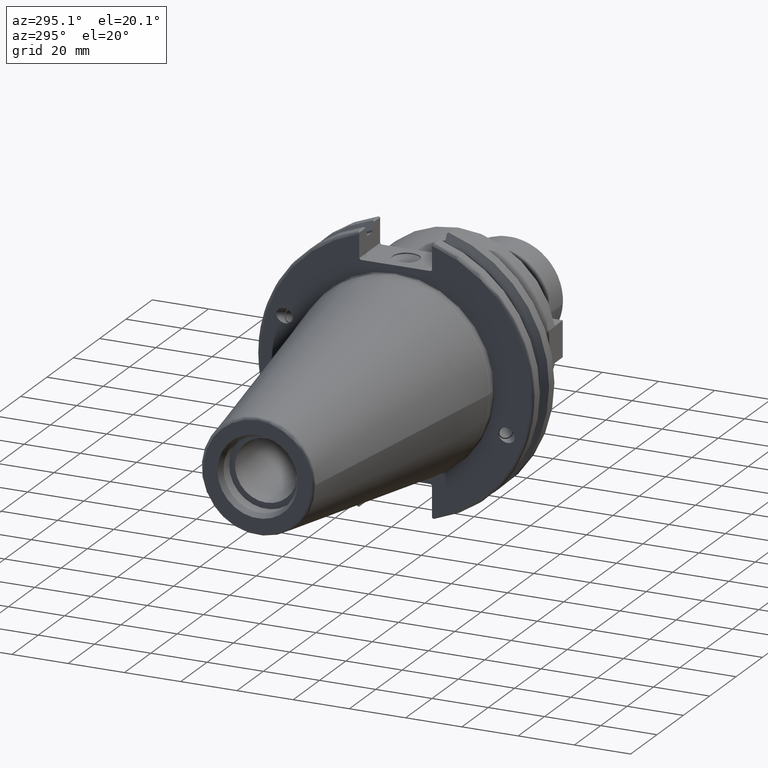
[diagram: clean part render]
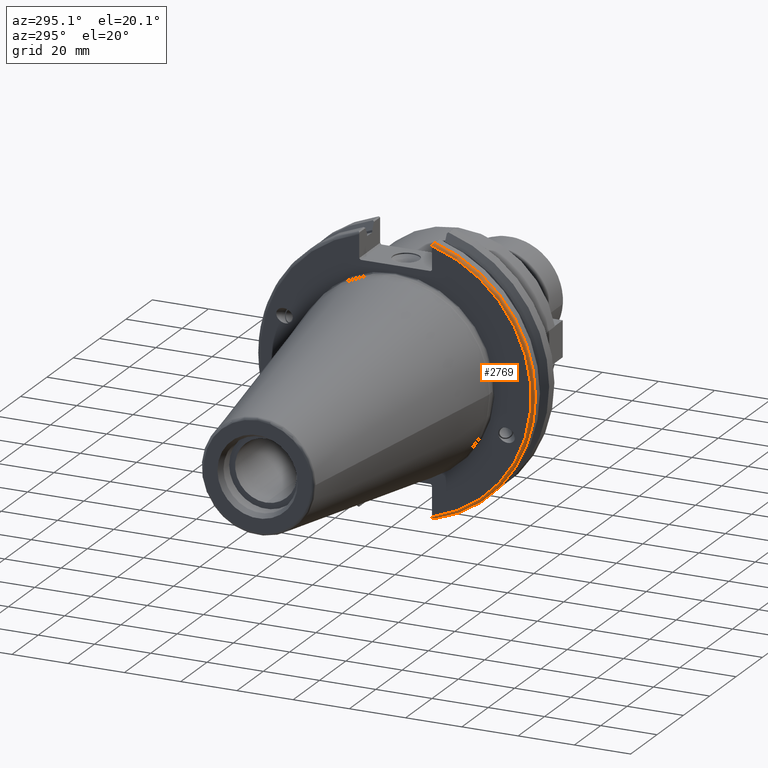
[diagram: same view with one face highlighted and labeled with its STEP entity id]
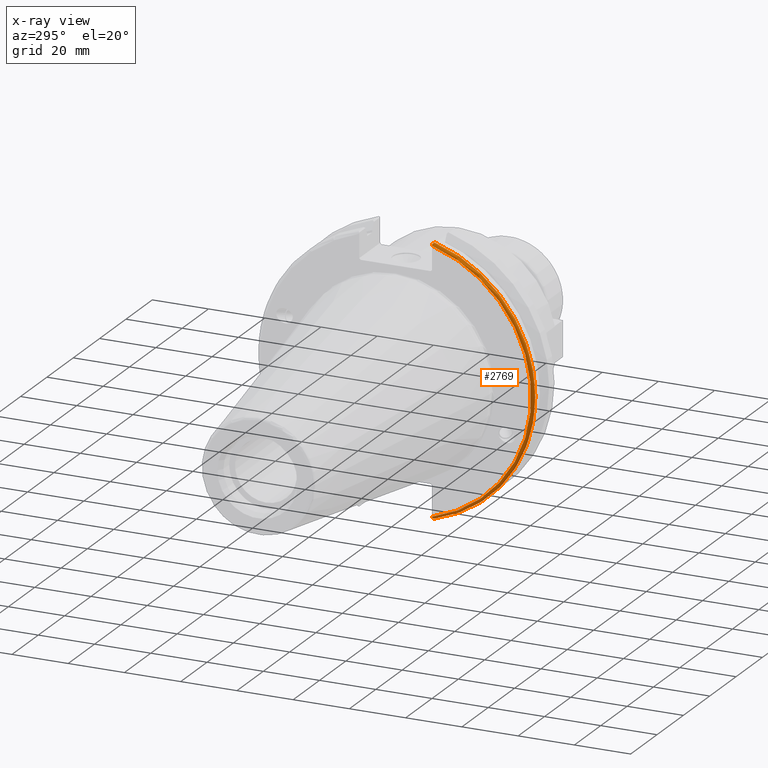
[diagram: x-ray of the same camera — body ghosted, the highlighted face saturated]
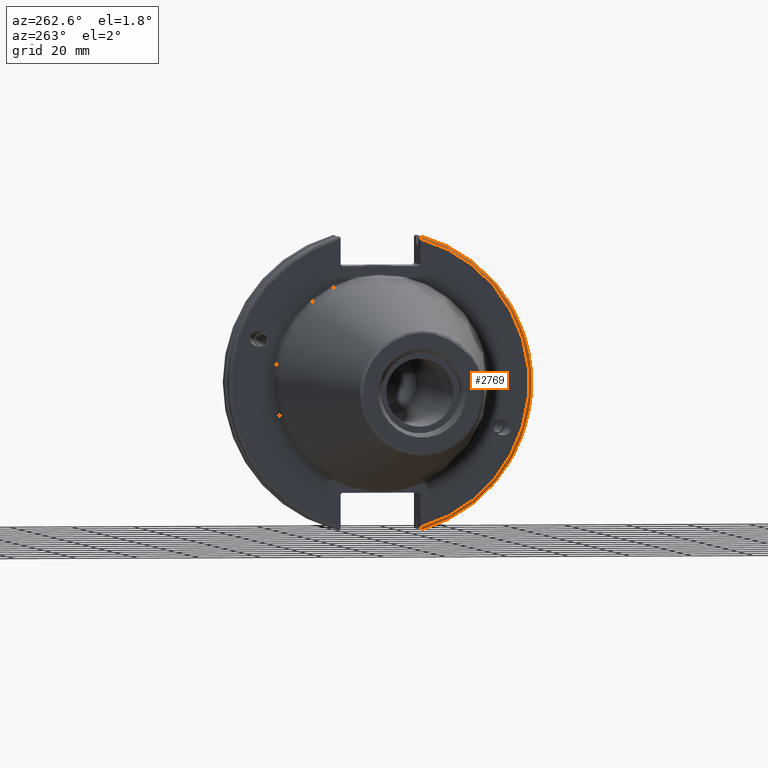
[diagram: same view with one face highlighted and labeled with its STEP entity id]
A machine part, auxiliary view. The second image highlights one B-rep face of the part: STEP entity #2769.
The next image is the same camera in x-ray: the body ghosted, the highlighted face saturated — about 0% of this face is hidden behind the body in this view.
A second angle (auxiliary view) of the same face is appended — the face is thin or edge-on in the first view.
In plain terms, the highlighted toroidal blend (fillet) surface has major radius 48.2125 mm and minor (blend) radius 1 mm.
Its self-contained STEP definition (entity closure, byte-faithful):
#446=TOROIDAL_SURFACE('',#3123,48.2125,1.);
#505=B_SPLINE_CURVE_WITH_KNOTS('',3,(#4865,#4866,#4867,#4868,#4869,#4870),
 .UNSPECIFIED.,.F.,.F.,(4,2,4),(0.0976892167532858,0.112000071948292,0.150881870548587),
 .UNSPECIFIED.);
#512=B_SPLINE_CURVE_WITH_KNOTS('',3,(#4975,#4976,#4977,#4978,#4979,#4980,
#4981,#4982),.UNSPECIFIED.,.F.,.F.,(4,2,2,4),(-0.104075769062722,-0.0730268503455485,
-0.034363987365627,0.),.UNSPECIFIED.);
#513=B_SPLINE_CURVE_WITH_KNOTS('',3,(#4985,#4986,#4987,#4988,#4989,#4990,
#4991,#4992),.UNSPECIFIED.,.F.,.F.,(4,2,2,4),(0.,0.0343639873656262,0.073026850345548,
0.104075769062723),.UNSPECIFIED.);
#514=B_SPLINE_CURVE_WITH_KNOTS('',3,(#4993,#4994,#4995,#4996,#4997,#4998),
 .UNSPECIFIED.,.F.,.F.,(4,2,4),(0.452859340315922,0.491741138916218,0.506051994111223),
 .UNSPECIFIED.);
#650=CIRCLE('',#3108,48.2125);
#657=CIRCLE('',#3124,49.2125);
#787=FACE_OUTER_BOUND('',#945,.T.);
#945=EDGE_LOOP('',(#2264,#2265,#2266,#2267,#2268,#2269));
#1469=VERTEX_POINT('',#4792);
#1470=VERTEX_POINT('',#4793);
#1489=VERTEX_POINT('',#4864);
#1514=VERTEX_POINT('',#4973);
#1515=VERTEX_POINT('',#4974);
#1516=VERTEX_POINT('',#4983);
#1736=EDGE_CURVE('',#1469,#1470,#650,.T.);
#1760=EDGE_CURVE('',#1489,#1469,#505,.T.);
#1794=EDGE_CURVE('',#1514,#1515,#512,.T.);
#1795=EDGE_CURVE('',#1515,#1516,#657,.T.);
#1796=EDGE_CURVE('',#1516,#1489,#513,.T.);
#1797=EDGE_CURVE('',#1470,#1514,#514,.T.);
#2264=ORIENTED_EDGE('',*,*,#1794,.T.);
#2265=ORIENTED_EDGE('',*,*,#1795,.T.);
#2266=ORIENTED_EDGE('',*,*,#1796,.T.);
#2267=ORIENTED_EDGE('',*,*,#1760,.T.);
#2268=ORIENTED_EDGE('',*,*,#1736,.T.);
#2269=ORIENTED_EDGE('',*,*,#1797,.T.);
#2769=ADVANCED_FACE('',(#787),#446,.T.);
#3108=AXIS2_PLACEMENT_3D('',#4794,#3586,#3587);
#3123=AXIS2_PLACEMENT_3D('',#4972,#3653,#3654);
#3124=AXIS2_PLACEMENT_3D('',#4984,#3655,#3656);
#3586=DIRECTION('center_axis',(1.,0.,0.));
#3587=DIRECTION('ref_axis',(0.,-1.,1.60812264967664E-16));
#3653=DIRECTION('center_axis',(1.,0.,0.));
#3654=DIRECTION('ref_axis',(0.,0.,-1.));
#3655=DIRECTION('center_axis',(-1.,0.,0.));
#3656=DIRECTION('ref_axis',(0.,-1.,1.60812264967664E-16));
#4792=CARTESIAN_POINT('',(3.175,-12.95,46.4407434937254));
#4793=CARTESIAN_POINT('',(3.175,-12.95,-46.4407434937254));
#4794=CARTESIAN_POINT('Origin',(3.175,0.,0.));
#4864=CARTESIAN_POINT('',(3.31949794294344,-12.95,46.9780755322918));
#4865=CARTESIAN_POINT('Ctrl Pts',(3.31949794294344,-12.95,46.9780755322918));
#4866=CARTESIAN_POINT('Ctrl Pts',(3.29341556483839,-12.95,46.9333752207329));
#4867=CARTESIAN_POINT('Ctrl Pts',(3.27115672912336,-12.95,46.887363294568));
#4868=CARTESIAN_POINT('Ctrl Pts',(3.20453530071253,-12.95,46.7230464903732));
#4869=CARTESIAN_POINT('Ctrl Pts',(3.175,-12.95,46.5703494890597));
#4870=CARTESIAN_POINT('Ctrl Pts',(3.175,-12.95,46.4407434937254));
#4972=CARTESIAN_POINT('Origin',(4.175,0.,0.));
#4973=CARTESIAN_POINT('',(3.31949794294343,-12.95,-46.9780755322917));
#4974=CARTESIAN_POINT('',(4.175,-13.4317035994433,-47.3440544806494));
#4975=CARTESIAN_POINT('Ctrl Pts',(3.31949794294343,-12.95,-46.9780755322917));
#4976=CARTESIAN_POINT('Ctrl Pts',(3.36785032278753,-13.0300321736484,-47.0388807469102));
#4977=CARTESIAN_POINT('Ctrl Pts',(3.43235971798504,-13.1083611826073,-47.0983919657547));
#4978=CARTESIAN_POINT('Ctrl Pts',(3.58507512107923,-13.2478194810696,-47.2043467509586));
#4979=CARTESIAN_POINT('Ctrl Pts',(3.70638116490964,-13.3242014686233,-47.2623787015413));
#4980=CARTESIAN_POINT('Ctrl Pts',(3.92661103245834,-13.4067722493645,-47.3251126473446));
#4981=CARTESIAN_POINT('Ctrl Pts',(4.06045337544791,-13.4317035994434,-47.3440544806494));
#4982=CARTESIAN_POINT('Ctrl Pts',(4.175,-13.4317035994434,-47.3440544806494));
#4983=CARTESIAN_POINT('',(4.175,-13.4317035994433,47.3440544806494));
#4984=CARTESIAN_POINT('Origin',(4.175,0.,0.));
#4985=CARTESIAN_POINT('Ctrl Pts',(4.175,-13.4317035994433,47.3440544806494));
#4986=CARTESIAN_POINT('Ctrl Pts',(4.06045337544791,-13.4317035994433,47.3440544806494));
#4987=CARTESIAN_POINT('Ctrl Pts',(3.92661103245835,-13.4067722493645,47.3251126473446));
#4988=CARTESIAN_POINT('Ctrl Pts',(3.70638116490965,-13.3242014686233,47.2623787015413));
#4989=CARTESIAN_POINT('Ctrl Pts',(3.58507512107923,-13.2478194810695,47.2043467509586));
#4990=CARTESIAN_POINT('Ctrl Pts',(3.43235971798504,-13.1083611826073,47.0983919657547));
#4991=CARTESIAN_POINT('Ctrl Pts',(3.36785032278754,-13.0300321736484,47.0388807469102));
#4992=CARTESIAN_POINT('Ctrl Pts',(3.31949794294344,-12.95,46.9780755322918));
#4993=CARTESIAN_POINT('Ctrl Pts',(3.175,-12.95,-46.4407434937254));
#4994=CARTESIAN_POINT('Ctrl Pts',(3.175,-12.95,-46.5703494890597));
#4995=CARTESIAN_POINT('Ctrl Pts',(3.20453530071253,-12.95,-46.7230464903732));
#4996=CARTESIAN_POINT('Ctrl Pts',(3.27115672912336,-12.95,-46.887363294568));
#4997=CARTESIAN_POINT('Ctrl Pts',(3.29341556483838,-12.95,-46.9333752207329));
#4998=CARTESIAN_POINT('Ctrl Pts',(3.31949794294343,-12.95,-46.9780755322917));